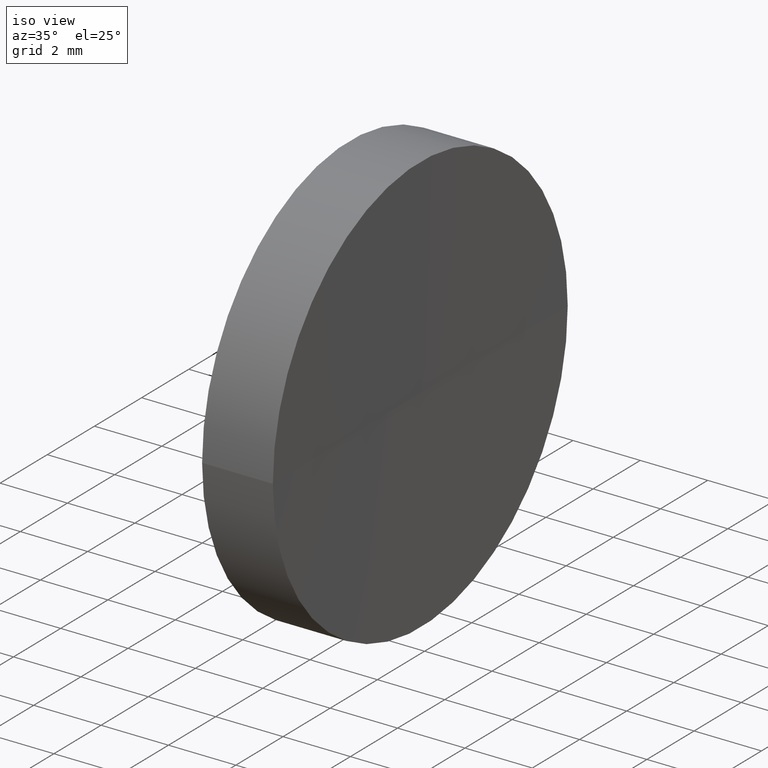
[diagram: clean part render]
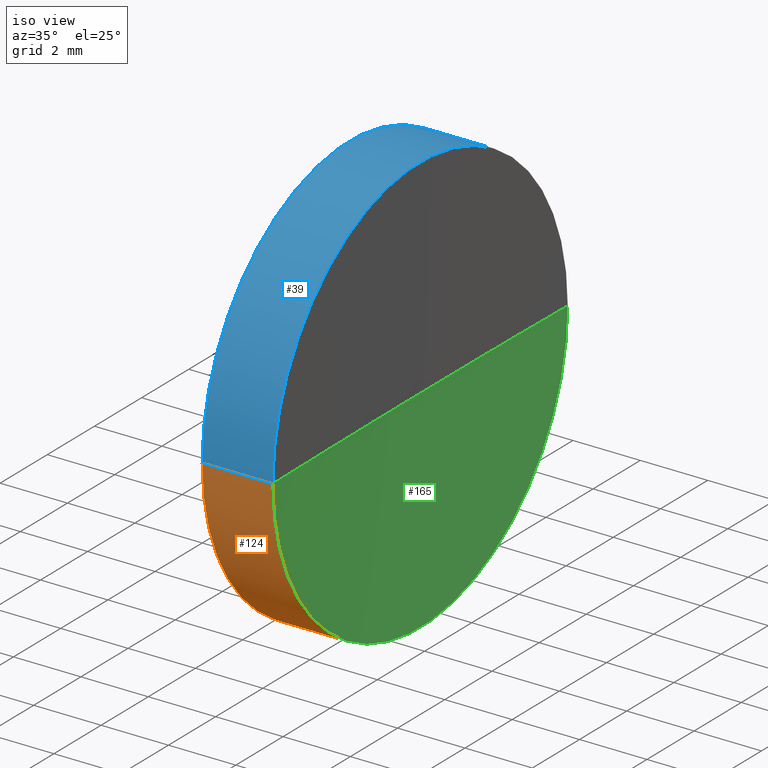
[diagram: same view with three faces highlighted in distinct colors, each labeled with its STEP entity id]
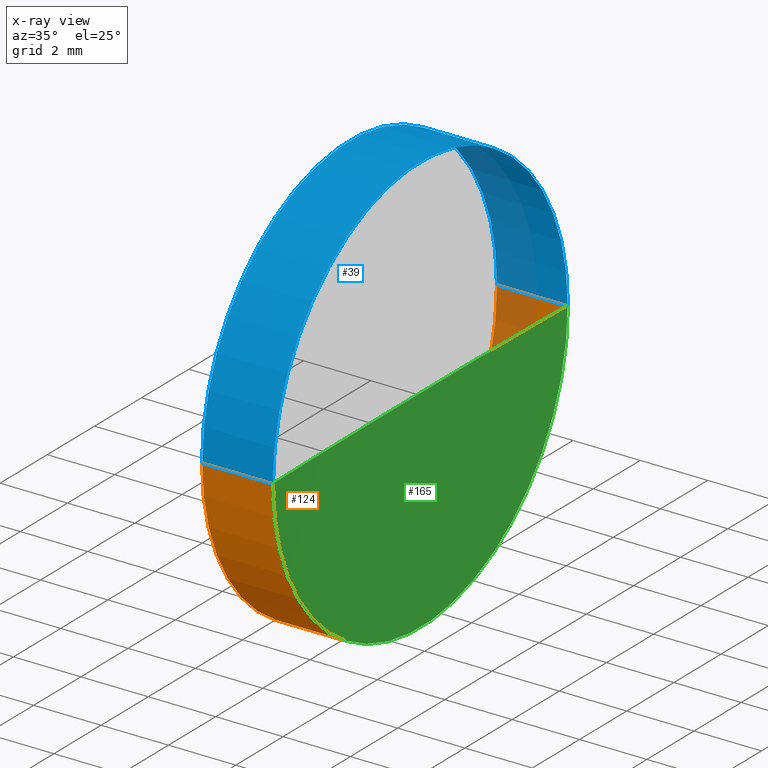
[diagram: x-ray of the same camera — body ghosted, the three highlighted faces saturated]
A machine part, iso view with three faces highlighted in distinct colors.
The next image is the same camera in x-ray (body ghosted, the three faces saturated) — at least one of them is partly hidden behind the body in this view.
Their STEP definitions:

[orange] entity #124 — the highlighted cylindrical surface (partial cylindrical patch) has radius 6.25 mm, axis along (-1, -0, -0).
#11 = VERTEX_POINT ( 'NONE', #174 ) ;
#14 = EDGE_LOOP ( 'NONE', ( #65, #156, #69, #95 ) ) ;
#20 = DIRECTION ( 'NONE',  ( -1.000000000000000000, -6.937607244762875000E-016, -0.0000000000000000000 ) ) ;
#28 = AXIS2_PLACEMENT_3D ( 'NONE', #112, #77, #36 ) ;
#34 = CARTESIAN_POINT ( 'NONE',  ( 57.97224564898157700, 38.85842023547017700, 7.654042494670977300E-016 ) ) ;
#36 = DIRECTION ( 'NONE',  ( 1.110223024625153800E-015, -1.000000000000000000, 0.0000000000000000000 ) ) ;
#45 = VERTEX_POINT ( 'NONE', #144 ) ;
#59 = EDGE_CURVE ( 'NONE', #88, #11, #80, .T. ) ;
#62 = CIRCLE ( 'NONE', #160, 6.250000000000078200 ) ;
#65 = ORIENTED_EDGE ( 'NONE', *, *, #59, .F. ) ;
#66 = CARTESIAN_POINT ( 'NONE',  ( 63.44748697774435400, 32.60842023547017000, 0.0000000000000000000 ) ) ;
#69 = ORIENTED_EDGE ( 'NONE', *, *, #185, .T. ) ;
#73 = EDGE_CURVE ( 'NONE', #11, #45, #187, .T. ) ;
#75 = VECTOR ( 'NONE', #101, 1000.000000000000000 ) ;
#76 = EDGE_CURVE ( 'NONE', #88, #161, #62, .T. ) ;
#77 = DIRECTION ( 'NONE',  ( -1.000000000000000000, -6.937607244762875000E-016, -0.0000000000000000000 ) ) ;
#80 = LINE ( 'NONE', #34, #100 ) ;
#86 = LINE ( 'NONE', #170, #75 ) ;
#88 = VERTEX_POINT ( 'NONE', #90 ) ;
#90 = CARTESIAN_POINT ( 'NONE',  ( 63.44748697774434000, 38.85842023547196800, 0.0000000000000000000 ) ) ;
#91 = DIRECTION ( 'NONE',  ( 1.110223024625164800E-015, -1.000000000000000000, 0.0000000000000000000 ) ) ;
#94 = CARTESIAN_POINT ( 'NONE',  ( 61.34748697774439600, 32.60842023547016300, 0.0000000000000000000 ) ) ;
#95 = ORIENTED_EDGE ( 'NONE', *, *, #73, .F. ) ;
#100 = VECTOR ( 'NONE', #132, 1000.000000000000000 ) ;
#101 = DIRECTION ( 'NONE',  ( -1.000000000000000000, -6.937607244762875000E-016, -0.0000000000000000000 ) ) ;
#112 = CARTESIAN_POINT ( 'NONE',  ( 57.97224564898158400, 32.60842023547016300, 0.0000000000000000000 ) ) ;
#120 = AXIS2_PLACEMENT_3D ( 'NONE', #94, #147, #91 ) ;
#124 = ADVANCED_FACE ( 'NONE', ( #175 ), #158, .T. ) ;
#132 = DIRECTION ( 'NONE',  ( -1.000000000000000000, -6.937607244762875000E-016, -0.0000000000000000000 ) ) ;
#138 = CARTESIAN_POINT ( 'NONE',  ( 63.44748697774434000, 26.35842023546807800, -7.654042494673167400E-016 ) ) ;
#144 = CARTESIAN_POINT ( 'NONE',  ( 61.34748697774440300, 26.35842023547020900, 0.0000000000000000000 ) ) ;
#147 = DIRECTION ( 'NONE',  ( -1.000000000000000000, -6.937607244762875000E-016, -0.0000000000000000000 ) ) ;
#156 = ORIENTED_EDGE ( 'NONE', *, *, #76, .T. ) ;
#158 = CYLINDRICAL_SURFACE ( 'NONE', #28, 6.250000000000016000 ) ;
#160 = AXIS2_PLACEMENT_3D ( 'NONE', #66, #20, #184 ) ;
#161 = VERTEX_POINT ( 'NONE', #138 ) ;
#170 = CARTESIAN_POINT ( 'NONE',  ( 57.97224564898159100, 26.35842023547014900, 0.0000000000000000000 ) ) ;
#174 = CARTESIAN_POINT ( 'NONE',  ( 61.34748697774439600, 38.85842023547012000, 7.654042494670939900E-016 ) ) ;
#175 = FACE_OUTER_BOUND ( 'NONE', #14, .T. ) ;
#184 = DIRECTION ( 'NONE',  ( 0.0000000000000000000, -1.000000000000000000, 0.0000000000000000000 ) ) ;
#185 = EDGE_CURVE ( 'NONE', #161, #45, #86, .T. ) ;
#187 = CIRCLE ( 'NONE', #120, 6.249999999999953800 ) ;

[blue] entity #39 — the highlighted cylindrical surface (partial cylindrical patch) has radius 6.25 mm, axis along (-1, -0, -0).
#3 = DIRECTION ( 'NONE',  ( -1.000000000000000000, -6.937607244762875000E-016, -0.0000000000000000000 ) ) ;
#6 = ORIENTED_EDGE ( 'NONE', *, *, #145, .T. ) ;
#11 = VERTEX_POINT ( 'NONE', #174 ) ;
#22 = FACE_OUTER_BOUND ( 'NONE', #119, .T. ) ;
#27 = ORIENTED_EDGE ( 'NONE', *, *, #60, .F. ) ;
#34 = CARTESIAN_POINT ( 'NONE',  ( 57.97224564898157700, 38.85842023547017700, 7.654042494670977300E-016 ) ) ;
#37 = CARTESIAN_POINT ( 'NONE',  ( 61.34748697774439600, 32.60842023547016300, 0.0000000000000000000 ) ) ;
#39 = ADVANCED_FACE ( 'NONE', ( #22 ), #171, .T. ) ;
#41 = AXIS2_PLACEMENT_3D ( 'NONE', #143, #53, #83 ) ;
#45 = VERTEX_POINT ( 'NONE', #144 ) ;
#53 = DIRECTION ( 'NONE',  ( -1.000000000000000000, -6.937607244762875000E-016, -0.0000000000000000000 ) ) ;
#59 = EDGE_CURVE ( 'NONE', #88, #11, #80, .T. ) ;
#60 = EDGE_CURVE ( 'NONE', #45, #11, #146, .T. ) ;
#63 = CARTESIAN_POINT ( 'NONE',  ( 63.44748697774435400, 32.60842023547017000, 0.0000000000000000000 ) ) ;
#75 = VECTOR ( 'NONE', #101, 1000.000000000000000 ) ;
#80 = LINE ( 'NONE', #34, #100 ) ;
#83 = DIRECTION ( 'NONE',  ( 1.110223024625153800E-015, -1.000000000000000000, 0.0000000000000000000 ) ) ;
#86 = LINE ( 'NONE', #170, #75 ) ;
#88 = VERTEX_POINT ( 'NONE', #90 ) ;
#90 = CARTESIAN_POINT ( 'NONE',  ( 63.44748697774434000, 38.85842023547196800, 0.0000000000000000000 ) ) ;
#97 = ORIENTED_EDGE ( 'NONE', *, *, #59, .T. ) ;
#100 = VECTOR ( 'NONE', #132, 1000.000000000000000 ) ;
#101 = DIRECTION ( 'NONE',  ( -1.000000000000000000, -6.937607244762875000E-016, -0.0000000000000000000 ) ) ;
#109 = DIRECTION ( 'NONE',  ( 0.0000000000000000000, -1.000000000000000000, 0.0000000000000000000 ) ) ;
#111 = AXIS2_PLACEMENT_3D ( 'NONE', #37, #181, #150 ) ;
#119 = EDGE_LOOP ( 'NONE', ( #6, #97, #27, #167 ) ) ;
#132 = DIRECTION ( 'NONE',  ( -1.000000000000000000, -6.937607244762875000E-016, -0.0000000000000000000 ) ) ;
#138 = CARTESIAN_POINT ( 'NONE',  ( 63.44748697774434000, 26.35842023546807800, -7.654042494673167400E-016 ) ) ;
#143 = CARTESIAN_POINT ( 'NONE',  ( 57.97224564898158400, 32.60842023547016300, 0.0000000000000000000 ) ) ;
#144 = CARTESIAN_POINT ( 'NONE',  ( 61.34748697774440300, 26.35842023547020900, 0.0000000000000000000 ) ) ;
#145 = EDGE_CURVE ( 'NONE', #161, #88, #151, .T. ) ;
#146 = CIRCLE ( 'NONE', #111, 6.249999999999953800 ) ;
#150 = DIRECTION ( 'NONE',  ( 1.110223024625164800E-015, -1.000000000000000000, 0.0000000000000000000 ) ) ;
#151 = CIRCLE ( 'NONE', #178, 6.250000000000078200 ) ;
#161 = VERTEX_POINT ( 'NONE', #138 ) ;
#167 = ORIENTED_EDGE ( 'NONE', *, *, #185, .F. ) ;
#170 = CARTESIAN_POINT ( 'NONE',  ( 57.97224564898159100, 26.35842023547014900, 0.0000000000000000000 ) ) ;
#171 = CYLINDRICAL_SURFACE ( 'NONE', #41, 6.250000000000016000 ) ;
#174 = CARTESIAN_POINT ( 'NONE',  ( 61.34748697774439600, 38.85842023547012000, 7.654042494670939900E-016 ) ) ;
#178 = AXIS2_PLACEMENT_3D ( 'NONE', #63, #3, #109 ) ;
#181 = DIRECTION ( 'NONE',  ( -1.000000000000000000, -6.937607244762875000E-016, -0.0000000000000000000 ) ) ;
#185 = EDGE_CURVE ( 'NONE', #161, #45, #86, .T. ) ;

[green] entity #165 — the highlighted spherical surface has radius 363 mm.
#7 = DIRECTION ( 'NONE',  ( -8.496118506040342700E-032, 1.224646799147353200E-016, -1.000000000000000000 ) ) ;
#15 = ORIENTED_EDGE ( 'NONE', *, *, #50, .F. ) ;
#16 = CIRCLE ( 'NONE', #152, 363.0000000000000600 ) ;
#20 = DIRECTION ( 'NONE',  ( -1.000000000000000000, -6.937607244762875000E-016, -0.0000000000000000000 ) ) ;
#30 = EDGE_LOOP ( 'NONE', ( #15, #163, #52 ) ) ;
#31 = FACE_OUTER_BOUND ( 'NONE', #30, .T. ) ;
#32 = DIRECTION ( 'NONE',  ( 0.0000000000000000000, -0.0000000000000000000, 1.000000000000000000 ) ) ;
#43 = AXIS2_PLACEMENT_3D ( 'NONE', #139, #104, #67 ) ;
#46 = EDGE_CURVE ( 'NONE', #88, #128, #48, .T. ) ;
#47 = CARTESIAN_POINT ( 'NONE',  ( 63.39367789314709300, 32.60842023546990000, 0.0000000000000000000 ) ) ;
#48 = CIRCLE ( 'NONE', #114, 363.0000000000000600 ) ;
#50 = EDGE_CURVE ( 'NONE', #161, #128, #16, .T. ) ;
#52 = ORIENTED_EDGE ( 'NONE', *, *, #46, .T. ) ;
#62 = CIRCLE ( 'NONE', #160, 6.250000000000078200 ) ;
#66 = CARTESIAN_POINT ( 'NONE',  ( 63.44748697774435400, 32.60842023547017000, 0.0000000000000000000 ) ) ;
#67 = DIRECTION ( 'NONE',  ( -7.646164081440470900E-016, 1.000000000000000000, 0.0000000000000000000 ) ) ;
#76 = EDGE_CURVE ( 'NONE', #88, #161, #62, .T. ) ;
#88 = VERTEX_POINT ( 'NONE', #90 ) ;
#90 = CARTESIAN_POINT ( 'NONE',  ( 63.44748697774434000, 38.85842023547196800, 0.0000000000000000000 ) ) ;
#104 = DIRECTION ( 'NONE',  ( 0.0000000000000000000, 0.0000000000000000000, -1.000000000000000000 ) ) ;
#114 = AXIS2_PLACEMENT_3D ( 'NONE', #182, #32, #125 ) ;
#118 = SPHERICAL_SURFACE ( 'NONE', #43, 363.0000000000000600 ) ;
#121 = DIRECTION ( 'NONE',  ( 0.0000000000000000000, 1.000000000000000000, 1.224646799147353200E-016 ) ) ;
#125 = DIRECTION ( 'NONE',  ( 1.000000000000000000, 0.0000000000000000000, 0.0000000000000000000 ) ) ;
#128 = VERTEX_POINT ( 'NONE', #47 ) ;
#138 = CARTESIAN_POINT ( 'NONE',  ( 63.44748697774434000, 26.35842023546807800, -7.654042494673167400E-016 ) ) ;
#139 = CARTESIAN_POINT ( 'NONE',  ( 426.3936778931471300, 32.60842023547012800, 0.0000000000000000000 ) ) ;
#149 = CARTESIAN_POINT ( 'NONE',  ( 426.3936778931471300, 32.60842023547012800, 0.0000000000000000000 ) ) ;
#152 = AXIS2_PLACEMENT_3D ( 'NONE', #149, #7, #121 ) ;
#160 = AXIS2_PLACEMENT_3D ( 'NONE', #66, #20, #184 ) ;
#161 = VERTEX_POINT ( 'NONE', #138 ) ;
#163 = ORIENTED_EDGE ( 'NONE', *, *, #76, .F. ) ;
#165 = ADVANCED_FACE ( 'NONE', ( #31 ), #118, .F. ) ;
#182 = CARTESIAN_POINT ( 'NONE',  ( 426.3936778931471300, 32.60842023547012800, 0.0000000000000000000 ) ) ;
#184 = DIRECTION ( 'NONE',  ( 0.0000000000000000000, -1.000000000000000000, 0.0000000000000000000 ) ) ;